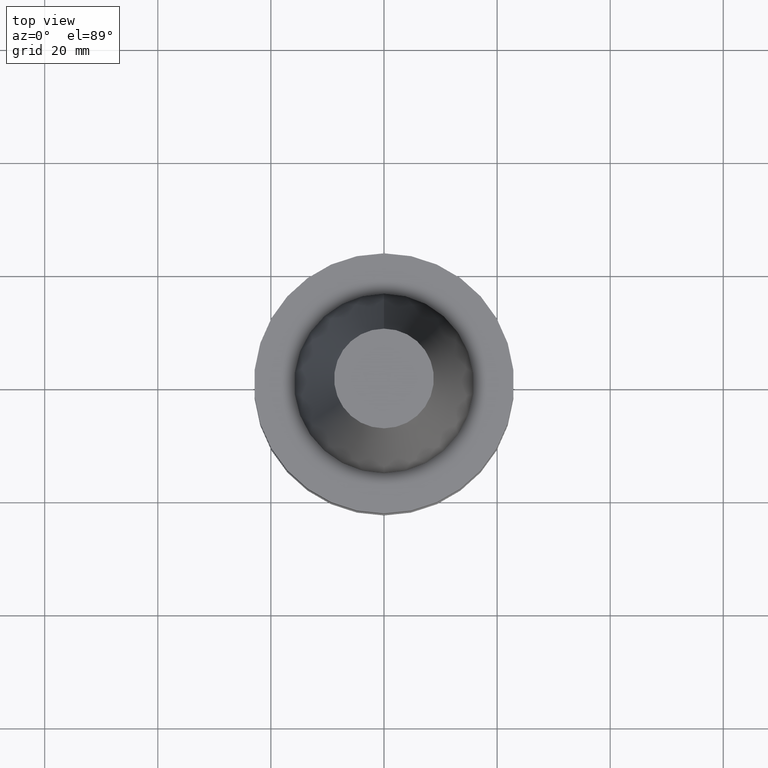
[diagram: clean part render]
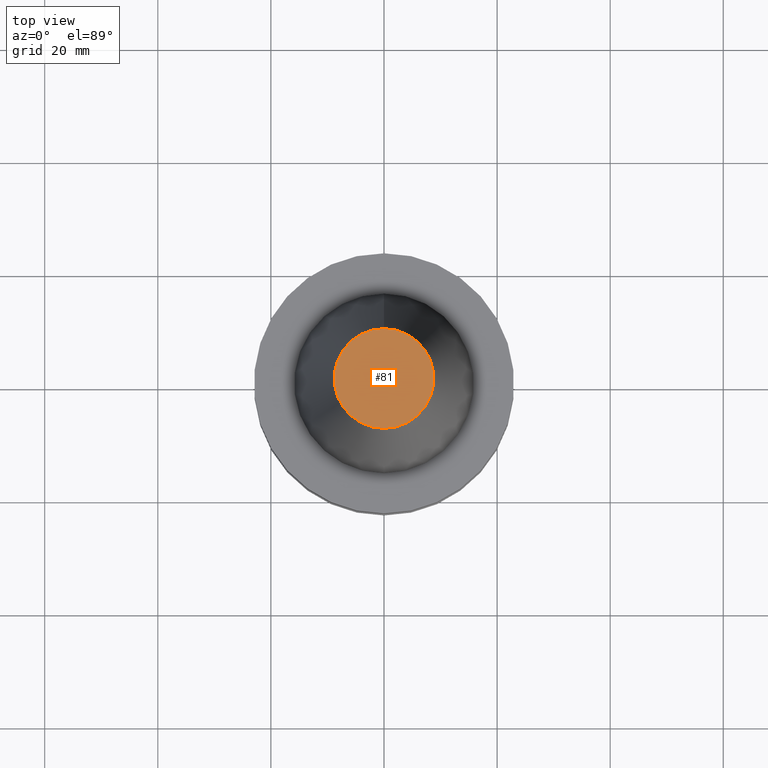
[diagram: same view with one face highlighted and labeled with its STEP entity id]
A machine part, top view. The second image highlights one B-rep face of the part: STEP entity #81.
In plain terms, the highlighted planar face has unit normal (-0, -0, 1).
Its self-contained STEP definition (entity closure, byte-faithful):
#81=ADVANCED_FACE('Unnamed[1]',(#193),#194,.T.);
#114=EDGE_CURVE('Unnamed[1]',#245,#245,#246,.T.);
#193=FACE_OUTER_BOUND('',#335,.T.);
#194=PLANE('',#336);
#245=VERTEX_POINT('',#400);
#246=CIRCLE('',#401,8.81650000198669);
#335=EDGE_LOOP('',(#488));
#336=AXIS2_PLACEMENT_3D('',#489,#490,#491);
#400=CARTESIAN_POINT('',(-2.96364525393659E-015,8.81650000198669,48.4));
#401=AXIS2_PLACEMENT_3D('',#548,#549,#550);
#488=ORIENTED_EDGE('',*,*,#114,.F.);
#489=CARTESIAN_POINT('',(-2.96364525393659E-015,4.40825000099334,48.4));
#490=DIRECTION('',(-6.12323399573677E-017,-1.22464679914735E-016,1.0));
#491=DIRECTION('',(1.23259516440783E-032,-1.0,-1.22464679914735E-016));
#548=CARTESIAN_POINT('',(-2.96364525393659E-015,-5.92729050787319E-015,48.4));
#549=DIRECTION('',(6.12323399573677E-017,1.22464679914764E-016,-1.0));
#550=DIRECTION('',(-1.23259516440789E-032,1.0,1.22464679914764E-016));